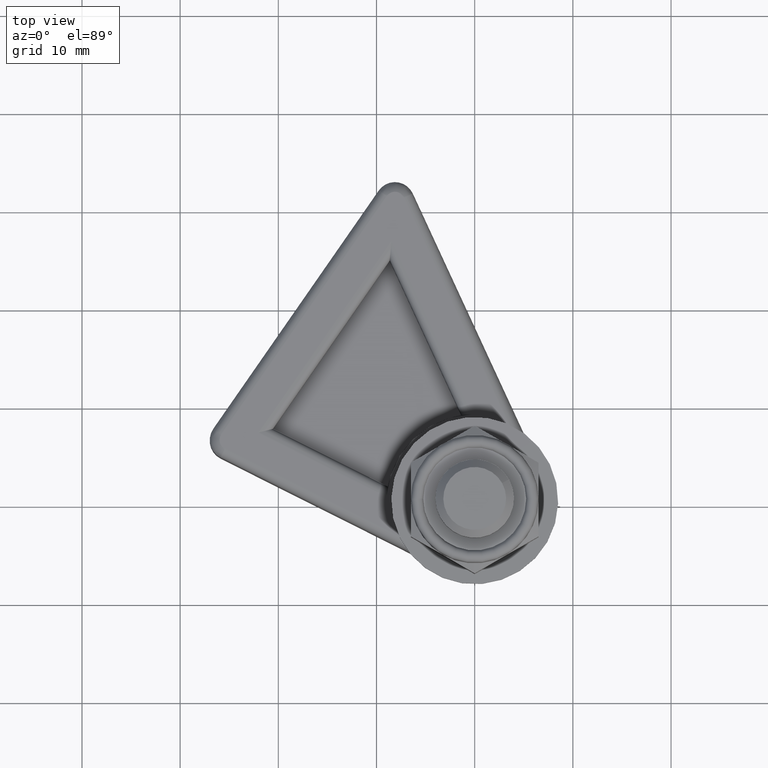
[diagram: clean part render]
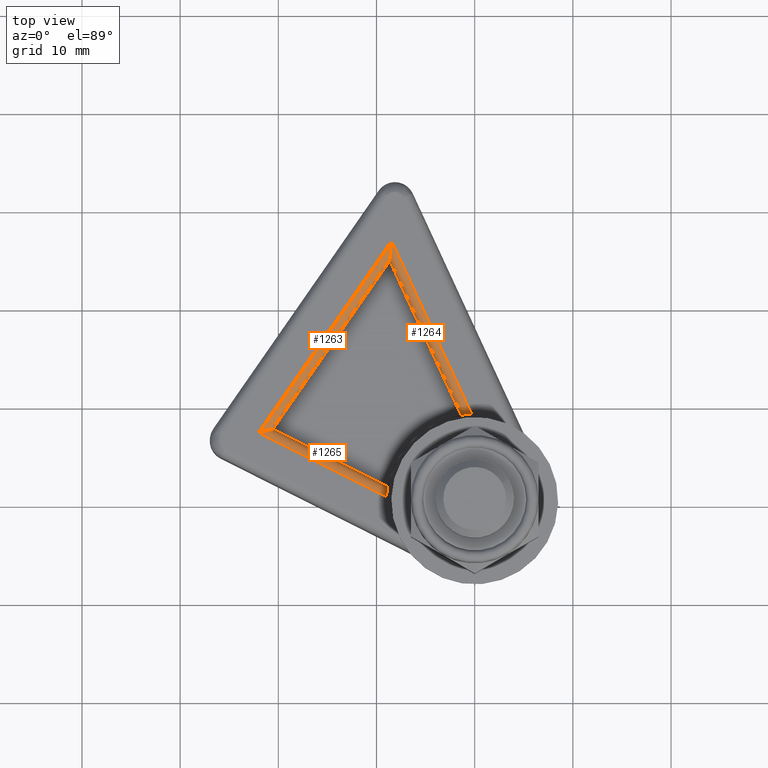
[diagram: same view with one multi-face feature highlighted, each face labeled with its STEP entity id]
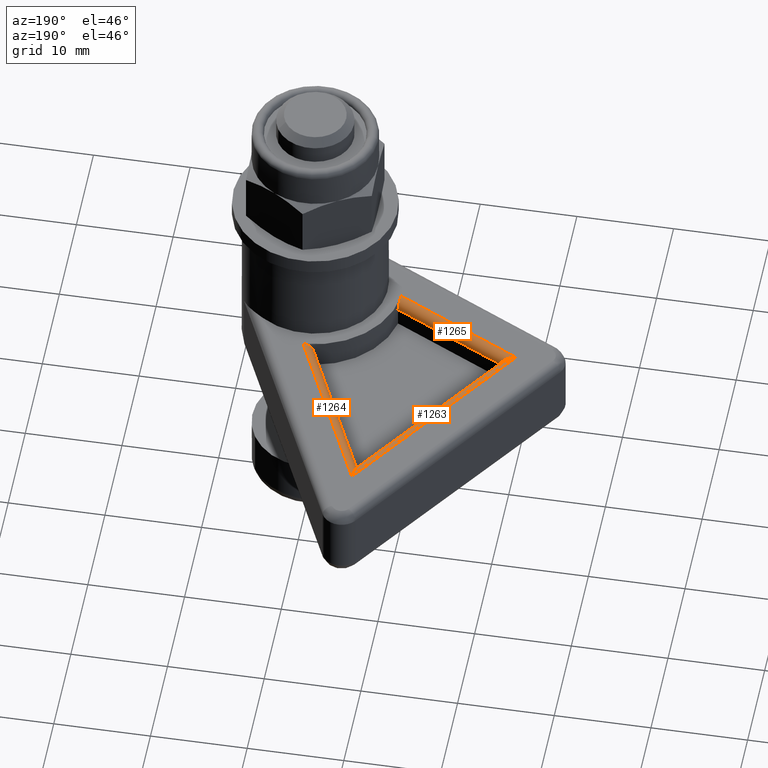
[diagram: same view with one multi-face feature highlighted, each face labeled with its STEP entity id]
A machine part, top view. The highlighted faces form ONE feature: a constant-radius fillet chain: 3 tangent blend faces with common blend radius 1 mm. The faces share edges in the B-rep.
A second angle (auxiliary view) of the same feature is appended — it is thin or edge-on in the first view.
Their STEP definitions:
[1] entity #1265 (Cylinder):
#28=ELLIPSE('',#1542,1.52624746986188,1.);
#32=B_SPLINE_CURVE_WITH_KNOTS('',3,(#2438,#2439,#2440,#2441,#2442,#2443,
#2444,#2445,#2446,#2447),.UNSPECIFIED.,.F.,.F.,(4,2,2,2,4),(0.314939945578999,
0.352412956357446,0.389885967135892,0.430212292524351,0.470538617912809),
 .UNSPECIFIED.);
#155=LINE('',#2436,#220);
#156=LINE('',#2448,#221);
#220=VECTOR('',#1911,10.);
#221=VECTOR('',#1912,10.);
#249=CYLINDRICAL_SURFACE('',#1544,1.);
#332=FACE_OUTER_BOUND('',#419,.T.);
#419=EDGE_LOOP('',(#1119,#1120,#1121,#1122));
#607=VERTEX_POINT('',#2411);
#610=VERTEX_POINT('',#2416);
#613=VERTEX_POINT('',#2435);
#614=VERTEX_POINT('',#2437);
#782=EDGE_CURVE('',#610,#607,#28,.T.);
#786=EDGE_CURVE('',#610,#613,#155,.T.);
#787=EDGE_CURVE('',#613,#614,#32,.F.);
#788=EDGE_CURVE('',#614,#607,#156,.T.);
#1119=ORIENTED_EDGE('',*,*,#786,.T.);
#1120=ORIENTED_EDGE('',*,*,#787,.T.);
#1121=ORIENTED_EDGE('',*,*,#788,.T.);
#1122=ORIENTED_EDGE('',*,*,#782,.F.);
#1265=ADVANCED_FACE('',(#332),#249,.T.);
#1542=AXIS2_PLACEMENT_3D('',#2418,#1903,#1904);
#1544=AXIS2_PLACEMENT_3D('',#2434,#1909,#1910);
#1903=DIRECTION('center_axis',(-0.655201741360127,0.755453954995708,1.25808356232056E-15));
#1904=DIRECTION('ref_axis',(-0.755453954995708,-0.655201741360127,1.09113008854878E-15));
#1909=DIRECTION('center_axis',(-1.,-1.21115239050017E-16,0.));
#1910=DIRECTION('ref_axis',(0.,0.707106781186548,0.707106781186547));
#1911=DIRECTION('',(1.,1.21115239050017E-16,0.));
#1912=DIRECTION('',(-1.,-1.21115239050017E-16,0.));
#2411=CARTESIAN_POINT('',(-21.7349515629532,-2.5,7.));
#2416=CARTESIAN_POINT('',(-22.8879612503626,-3.5,8.));
#2418=CARTESIAN_POINT('Origin',(-22.8879612503626,-3.5,7.));
#2434=CARTESIAN_POINT('Origin',(-13.749999864912,-3.5,7.));
#2435=CARTESIAN_POINT('',(-8.2915619758885,-3.5,8.));
#2436=CARTESIAN_POINT('',(-13.749999864912,-3.5,8.));
#2437=CARTESIAN_POINT('',(-8.64580823289529,-2.5,7.));
#2438=CARTESIAN_POINT('Ctrl Pts',(-8.64580823289529,-2.5,7.));
#2439=CARTESIAN_POINT('Ctrl Pts',(-8.64580823289529,-2.5,7.12491003592816));
#2440=CARTESIAN_POINT('Ctrl Pts',(-8.63873244295827,-2.52488038379061,7.25781480874776));
#2441=CARTESIAN_POINT('Ctrl Pts',(-8.60889517072569,-2.62481297598208,7.501372478508));
#2442=CARTESIAN_POINT('Ctrl Pts',(-8.58597235784516,-2.69983275965213,7.61201888763228));
#2443=CARTESIAN_POINT('Ctrl Pts',(-8.52844461668792,-2.87661576158109,7.79282530155431));
#2444=CARTESIAN_POINT('Ctrl Pts',(-8.48907040083956,-2.99222540920807,7.87203632064322));
#2445=CARTESIAN_POINT('Ctrl Pts',(-8.39683716773989,-3.24204484362754,7.97557239180311));
#2446=CARTESIAN_POINT('Ctrl Pts',(-8.3438368421328,-3.37615991621546,8.));
#2447=CARTESIAN_POINT('Ctrl Pts',(-8.2915619758885,-3.5,8.));
#2448=CARTESIAN_POINT('',(-13.749999864912,-2.5,7.));
[2] entity #1263 (Cylinder):
#27=ELLIPSE('',#1541,2.0120209944353,1.);
#28=ELLIPSE('',#1542,1.52624746986188,1.);
#151=LINE('',#2413,#216);
#152=LINE('',#2417,#217);
#216=VECTOR('',#1899,10.);
#217=VECTOR('',#1902,10.);
#247=CYLINDRICAL_SURFACE('',#1540,1.);
#330=FACE_OUTER_BOUND('',#417,.T.);
#417=EDGE_LOOP('',(#1111,#1112,#1113,#1114));
#607=VERTEX_POINT('',#2411);
#608=VERTEX_POINT('',#2412);
#609=VERTEX_POINT('',#2414);
#610=VERTEX_POINT('',#2416);
#779=EDGE_CURVE('',#607,#608,#151,.T.);
#780=EDGE_CURVE('',#608,#609,#27,.T.);
#781=EDGE_CURVE('',#609,#610,#152,.T.);
#782=EDGE_CURVE('',#610,#607,#28,.T.);
#1111=ORIENTED_EDGE('',*,*,#779,.T.);
#1112=ORIENTED_EDGE('',*,*,#780,.T.);
#1113=ORIENTED_EDGE('',*,*,#781,.T.);
#1114=ORIENTED_EDGE('',*,*,#782,.T.);
#1263=ADVANCED_FACE('',(#330),#247,.T.);
#1540=AXIS2_PLACEMENT_3D('',#2410,#1897,#1898);
#1541=AXIS2_PLACEMENT_3D('',#2415,#1900,#1901);
#1542=AXIS2_PLACEMENT_3D('',#2418,#1903,#1904);
#1897=DIRECTION('center_axis',(0.141421356237309,0.989949493661167,0.));
#1898=DIRECTION('ref_axis',(0.7,-0.100000000000001,0.707106781186547));
#1899=DIRECTION('',(0.141421356237309,0.989949493661167,0.));
#1900=DIRECTION('center_axis',(-0.929310214334874,-0.369300048108405,0.));
#1901=DIRECTION('ref_axis',(0.369300048108405,-0.929310214334874,0.));
#1902=DIRECTION('',(-0.141421356237309,-0.989949493661167,0.));
#1903=DIRECTION('center_axis',(-0.655201741360127,0.755453954995708,1.25808356232056E-15));
#1904=DIRECTION('ref_axis',(-0.755453954995708,-0.655201741360127,1.09113008854878E-15));
#2410=CARTESIAN_POINT('Origin',(-20.2402020292627,15.0343145476993,7.));
#2411=CARTESIAN_POINT('',(-21.7349515629532,-2.5,7.));
#2412=CARTESIAN_POINT('',(-18.7848027497996,18.1510416920753,7.));
#2413=CARTESIAN_POINT('',(-19.2502525356015,14.892893191462,7.));
#2414=CARTESIAN_POINT('',(-19.5278421998397,20.0208333536602,8.));
#2415=CARTESIAN_POINT('Origin',(-19.5278421998397,20.0208333536602,7.));
#2416=CARTESIAN_POINT('',(-22.8879612503626,-3.5,8.));
#2417=CARTESIAN_POINT('',(-20.2402020292627,15.0343145476993,8.));
#2418=CARTESIAN_POINT('Origin',(-22.8879612503626,-3.5,7.));
[3] entity #1264 (Cylinder):
#27=ELLIPSE('',#1541,2.0120209944353,1.);
#31=B_SPLINE_CURVE_WITH_KNOTS('',3,(#2423,#2424,#2425,#2426,#2427,#2428,
#2429,#2430,#2431,#2432),.UNSPECIFIED.,.F.,.F.,(4,2,2,2,4),(0.159325629527581,
0.19965195491604,0.239978280304498,0.277451291082945,0.314924301861391),
 .UNSPECIFIED.);
#153=LINE('',#2421,#218);
#154=LINE('',#2433,#219);
#218=VECTOR('',#1907,10.);
#219=VECTOR('',#1908,10.);
#248=CYLINDRICAL_SURFACE('',#1543,1.);
#331=FACE_OUTER_BOUND('',#418,.T.);
#418=EDGE_LOOP('',(#1115,#1116,#1117,#1118));
#608=VERTEX_POINT('',#2412);
#609=VERTEX_POINT('',#2414);
#611=VERTEX_POINT('',#2420);
#612=VERTEX_POINT('',#2422);
#780=EDGE_CURVE('',#608,#609,#27,.T.);
#783=EDGE_CURVE('',#608,#611,#153,.T.);
#784=EDGE_CURVE('',#611,#612,#31,.F.);
#785=EDGE_CURVE('',#612,#609,#154,.T.);
#1115=ORIENTED_EDGE('',*,*,#783,.T.);
#1116=ORIENTED_EDGE('',*,*,#784,.T.);
#1117=ORIENTED_EDGE('',*,*,#785,.T.);
#1118=ORIENTED_EDGE('',*,*,#780,.F.);
#1264=ADVANCED_FACE('',(#331),#248,.T.);
#1541=AXIS2_PLACEMENT_3D('',#2415,#1900,#1901);
#1543=AXIS2_PLACEMENT_3D('',#2419,#1905,#1906);
#1900=DIRECTION('center_axis',(-0.929310214334874,-0.369300048108405,0.));
#1901=DIRECTION('ref_axis',(0.369300048108405,-0.929310214334874,0.));
#1905=DIRECTION('center_axis',(0.782336613391328,-0.622855860811623,0.));
#1906=DIRECTION('ref_axis',(-0.440425602881683,-0.553195524499527,0.707106781186547));
#1907=DIRECTION('',(0.782336613391328,-0.622855860811623,0.));
#1908=DIRECTION('',(-0.782336613391328,0.622855860811623,0.));
#2412=CARTESIAN_POINT('',(-18.7848027497996,18.1510416920753,7.));
#2414=CARTESIAN_POINT('',(-19.5278421998397,20.0208333536602,8.));
#2415=CARTESIAN_POINT('Origin',(-19.5278421998397,20.0208333536602,7.));
#2419=CARTESIAN_POINT('Origin',(2.17999561852498,2.73817806272929,7.));
#2420=CARTESIAN_POINT('',(-5.20679268092511,7.34093386279053,7.));
#2421=CARTESIAN_POINT('',(1.55713975771336,1.95584144933796,7.));
#2422=CARTESIAN_POINT('',(-4.30679700310024,7.9026261188346,8.));
#2423=CARTESIAN_POINT('Ctrl Pts',(-4.30679700310024,7.9026261188346,8.));
#2424=CARTESIAN_POINT('Ctrl Pts',(-4.42482806691189,7.83830119389791,8.));
#2425=CARTESIAN_POINT('Ctrl Pts',(-4.54982652114055,7.76638962563405,7.97557239180311));
#2426=CARTESIAN_POINT('Ctrl Pts',(-4.77758545523868,7.62839474514872,7.87203632064322));
#2427=CARTESIAN_POINT('Ctrl Pts',(-4.88039749251126,7.56247354605487,7.79282530155431));
#2428=CARTESIAN_POINT('Ctrl Pts',(-5.03551387954759,7.46000122175966,7.61201888763228));
#2429=CARTESIAN_POINT('Ctrl Pts',(-5.10017374728166,7.41558810661481,7.501372478508));
#2430=CARTESIAN_POINT('Ctrl Pts',(-5.18576013852549,7.355991500753,7.25781480874776));
#2431=CARTESIAN_POINT('Ctrl Pts',(-5.20679268092511,7.34093386279053,7.12491003592816));
#2432=CARTESIAN_POINT('Ctrl Pts',(-5.20679268092511,7.34093386279053,7.));
#2433=CARTESIAN_POINT('',(2.17999561852498,2.73817806272929,8.));